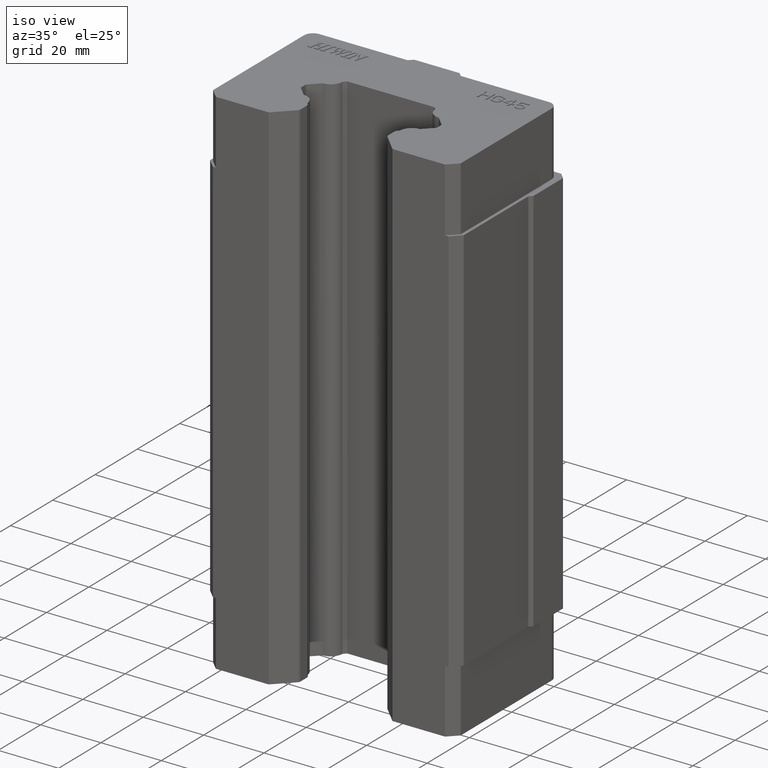
[diagram: clean part render]
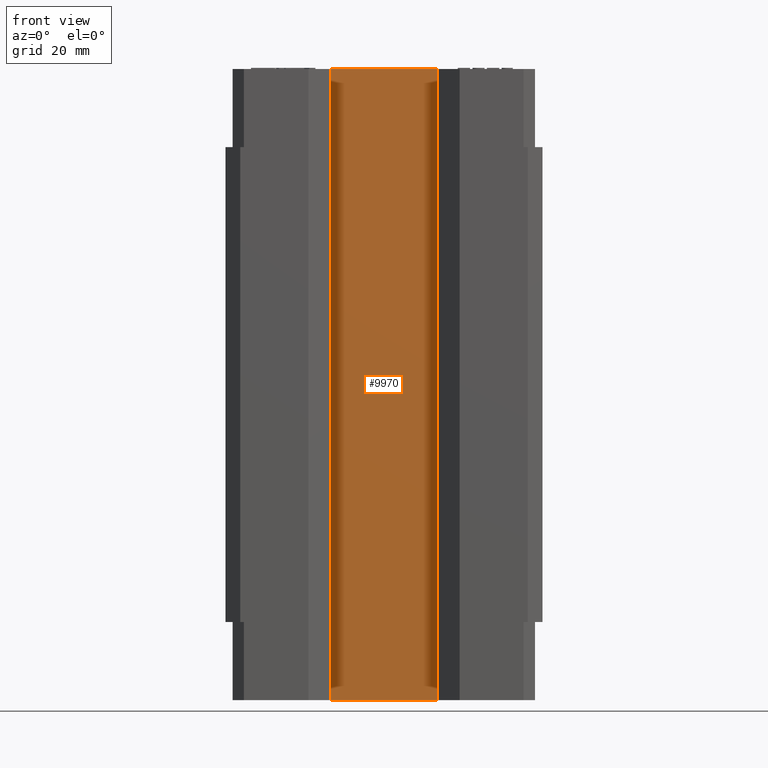
[diagram: tour spotlight — one face highlighted and labeled with its STEP entity id]
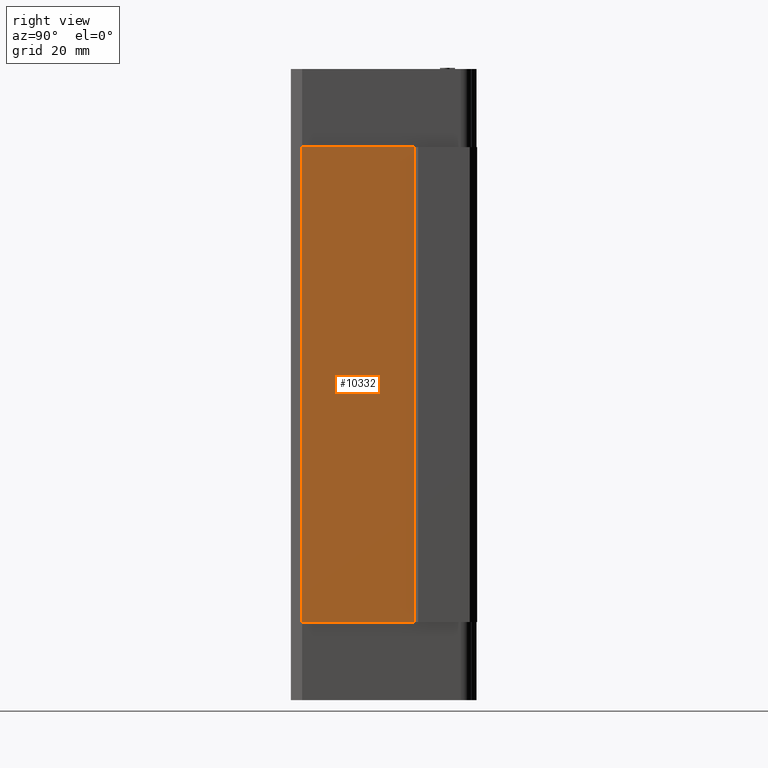
[diagram: tour spotlight — one face highlighted and labeled with its STEP entity id]
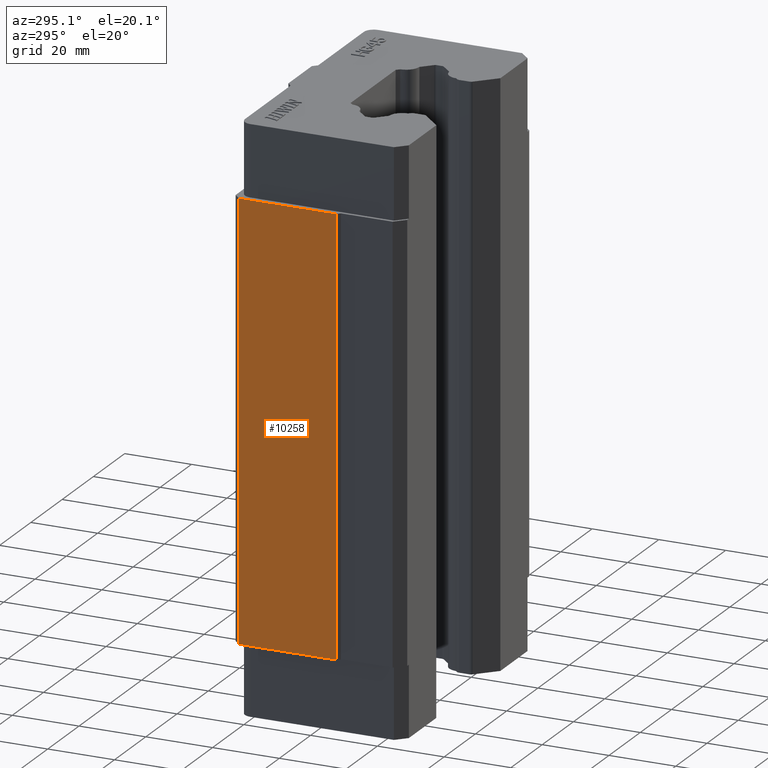
[diagram: tour spotlight — one face highlighted and labeled with its STEP entity id]
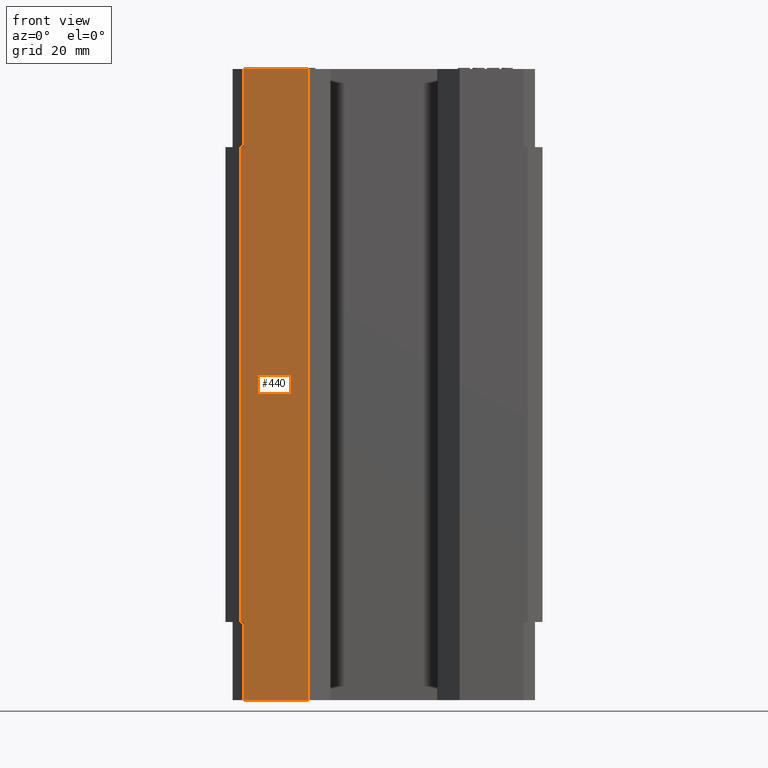
[diagram: tour spotlight — one face highlighted and labeled with its STEP entity id]
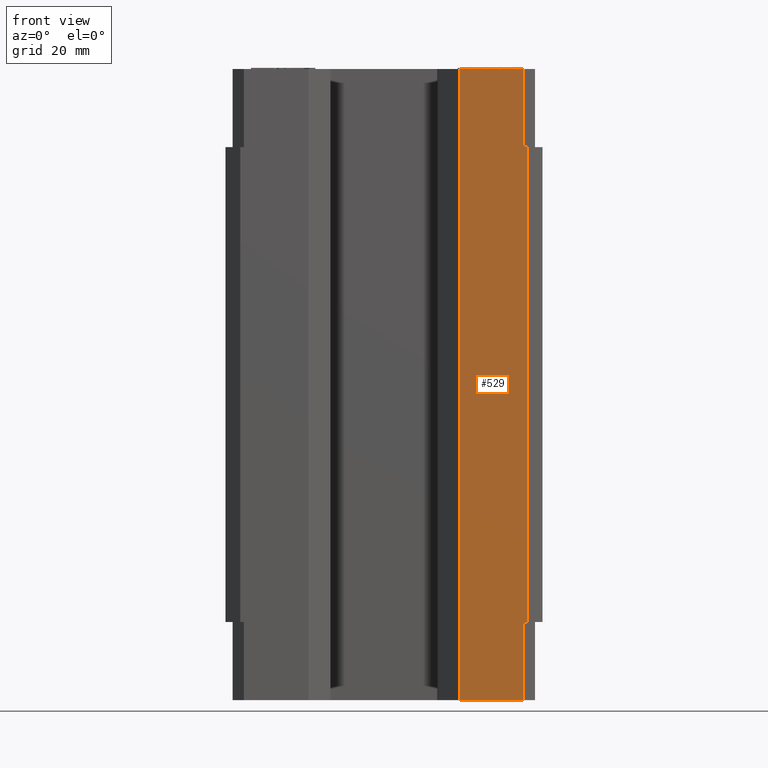
[diagram: tour spotlight — one face highlighted and labeled with its STEP entity id]
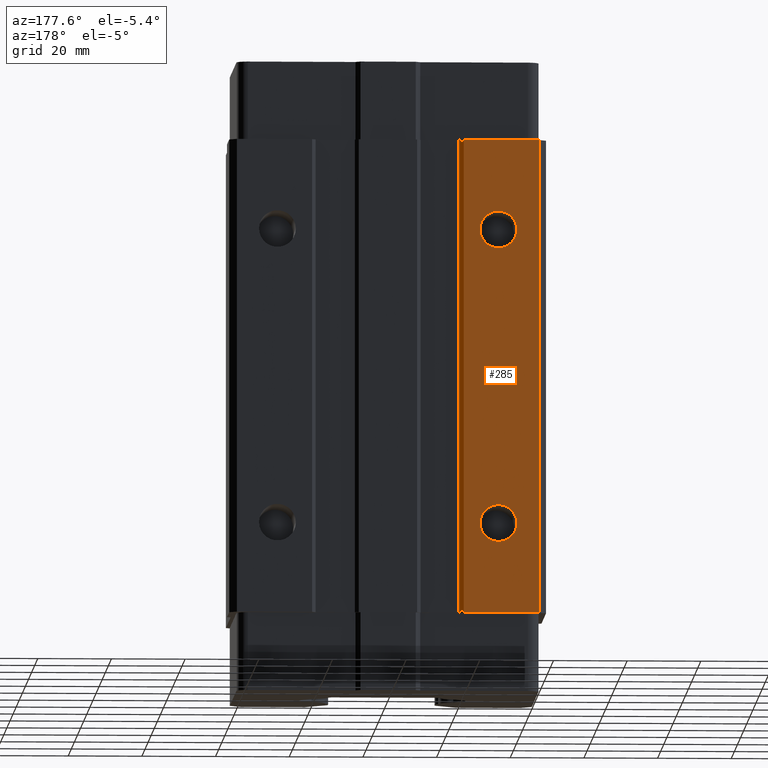
[diagram: tour spotlight — one face highlighted and labeled with its STEP entity id]
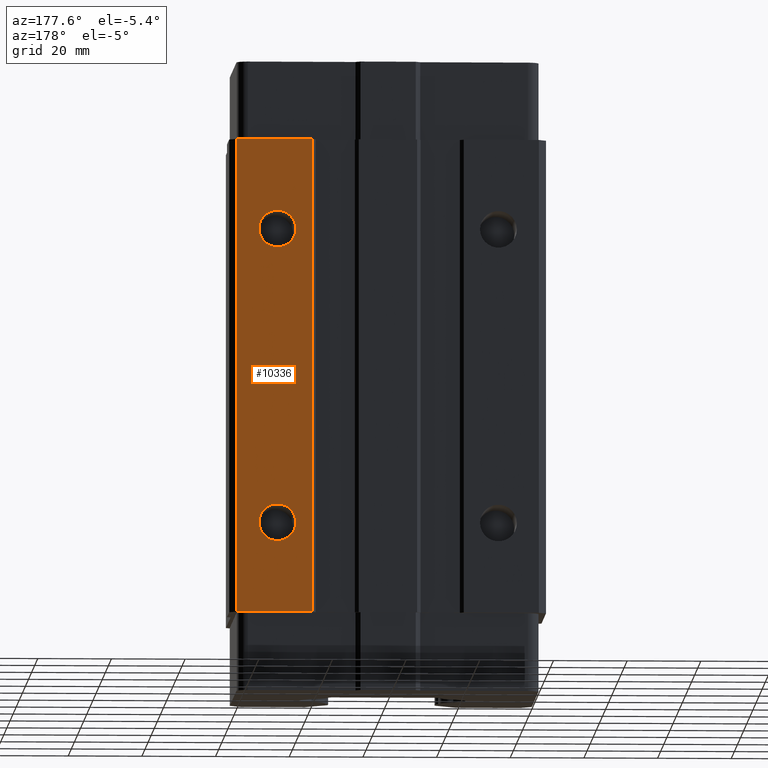
[diagram: tour spotlight — one face highlighted and labeled with its STEP entity id]
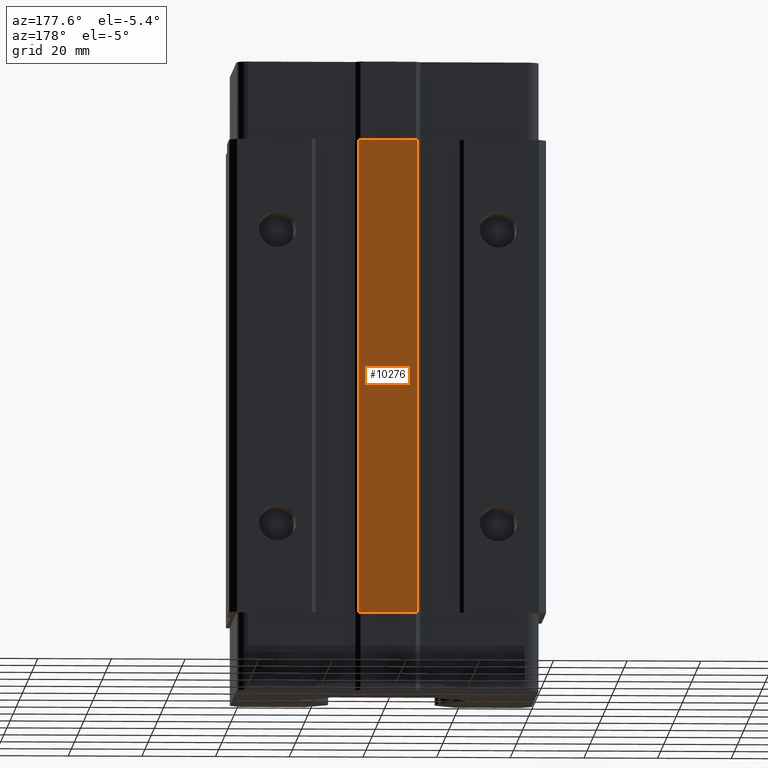
[diagram: tour spotlight — one face highlighted and labeled with its STEP entity id]
A machine part: a face-by-face anatomy tour. The part has 337 B-rep faces; the first image is the clean iso view, then the 8 largest visible faces are spotlighted one at a time (largest first), each with its STEP entity span.

Face 1 — front view, entity #9970. In plain terms, the highlighted planar face has unit normal (0, -1, 0).
Definition (entity closure, byte-faithful):
#6627 = CARTESIAN_POINT ( 'NONE',  ( -14.40034900003951700, -2.710505431213761100E-017, 85.60000000000000900 ) ) ;
#6652 = LINE ( 'NONE', #6711, #6710 ) ;
#6671 = CARTESIAN_POINT ( 'NONE',  ( 14.40034900003994300, 5.326495458048751500E-016, 85.60000000000000900 ) ) ;
#6672 = DIRECTION ( 'NONE',  ( -1.000000000000000000, 0.0000000000000000000, 0.0000000000000000000 ) ) ;
#6673 = VECTOR ( 'NONE', #6672, 1000.000000000000000 ) ;
#6674 = CARTESIAN_POINT ( 'NONE',  ( -14.40034900004000000, 0.0000000000000000000, 85.60000000000000900 ) ) ;
#6675 = LINE ( 'NONE', #6674, #6673 ) ;
#6707 = CARTESIAN_POINT ( 'NONE',  ( 14.40034900004000900, -6.630610629876739000E-014, -85.59999999999999400 ) ) ;
#6708 = CARTESIAN_POINT ( 'NONE',  ( -14.40034900003993300, -5.350836479148531500E-014, -85.59999999999998000 ) ) ;
#6709 = DIRECTION ( 'NONE',  ( 0.0000000000000000000, 0.0000000000000000000, -1.000000000000000000 ) ) ;
#6710 = VECTOR ( 'NONE', #6709, 1000.000000000000000 ) ;
#6711 = CARTESIAN_POINT ( 'NONE',  ( -14.40034900004000000, 0.0000000000000000000, -64.40000000000000600 ) ) ;
#6733 = DIRECTION ( 'NONE',  ( 1.000000000000000000, 0.0000000000000000000, 0.0000000000000000000 ) ) ;
#6734 = VECTOR ( 'NONE', #6733, 1000.000000000000000 ) ;
#6735 = CARTESIAN_POINT ( 'NONE',  ( -14.40034900004000000, 0.0000000000000000000, -85.59999999999999400 ) ) ;
#6736 = LINE ( 'NONE', #6735, #6734 ) ;
#7041 = DIRECTION ( 'NONE',  ( 0.0000000000000000000, 0.0000000000000000000, 1.000000000000000000 ) ) ;
#7042 = VECTOR ( 'NONE', #7041, 1000.000000000000000 ) ;
#7043 = CARTESIAN_POINT ( 'NONE',  ( 14.40034900004000000, 0.0000000000000000000, -64.40000000000000600 ) ) ;
#7044 = LINE ( 'NONE', #7043, #7042 ) ;
#7045 = DIRECTION ( 'NONE',  ( 0.0000000000000000000, 0.0000000000000000000, -1.000000000000000000 ) ) ;
#7046 = DIRECTION ( 'NONE',  ( 0.0000000000000000000, -1.000000000000000000, 0.0000000000000000000 ) ) ;
#7047 = CARTESIAN_POINT ( 'NONE',  ( -14.40034900004000000, 0.0000000000000000000, -64.40000000000000600 ) ) ;
#7048 = AXIS2_PLACEMENT_3D ( 'NONE', #7047, #7046, #7045 ) ;
#7049 = PLANE ( 'NONE',  #7048 ) ;
#7050 = FACE_OUTER_BOUND ( 'NONE', #9974, .T. ) ;
#8965 = VERTEX_POINT ( 'NONE', #6627 ) ;
#9191 = EDGE_CURVE ( 'NONE', #9192, #8965, #6675, .T. ) ;
#9192 = VERTEX_POINT ( 'NONE', #6671 ) ;
#9390 = EDGE_CURVE ( 'NONE', #8965, #9401, #6652, .T. ) ;
#9401 = VERTEX_POINT ( 'NONE', #6708 ) ;
#9418 = VERTEX_POINT ( 'NONE', #6707 ) ;
#9780 = EDGE_CURVE ( 'NONE', #9401, #9418, #6736, .T. ) ;
#9970 = ADVANCED_FACE ( 'NONE', ( #7050 ), #7049, .T. ) ;
#9972 = EDGE_CURVE ( 'NONE', #9418, #9192, #7044, .T. ) ;
#9973 = ORIENTED_EDGE ( 'NONE', *, *, #9191, .T. ) ;
#9974 = EDGE_LOOP ( 'NONE', ( #9986, #9988, #9973, #9980 ) ) ;
#9980 = ORIENTED_EDGE ( 'NONE', *, *, #9390, .T. ) ;
#9986 = ORIENTED_EDGE ( 'NONE', *, *, #9780, .T. ) ;
#9988 = ORIENTED_EDGE ( 'NONE', *, *, #9972, .T. ) ;

Face 2 — right view, entity #10332. In plain terms, the highlighted planar face has unit normal (1, 0, 0).
Definition (entity closure, byte-faithful):
#2115 = EDGE_CURVE ( 'NONE', #2131, #2156, #5201, .T. ) ;
#2131 = VERTEX_POINT ( 'NONE', #5236 ) ;
#2156 = VERTEX_POINT ( 'NONE', #5259 ) ;
#5198 = DIRECTION ( 'NONE',  ( 0.0000000000000000000, 0.0000000000000000000, 1.000000000000000000 ) ) ;
#5199 = VECTOR ( 'NONE', #5198, 1000.000000000000000 ) ;
#5200 = CARTESIAN_POINT ( 'NONE',  ( 42.00000000000000000, 5.000000000000000900, -64.40000000000000600 ) ) ;
#5201 = LINE ( 'NONE', #5200, #5199 ) ;
#5236 = CARTESIAN_POINT ( 'NONE',  ( 41.99999999999999300, 5.000000000000000900, -64.40000000000000600 ) ) ;
#5259 = CARTESIAN_POINT ( 'NONE',  ( 41.99999999999999300, 5.000000000000000900, 64.40000000000000600 ) ) ;
#7648 = CARTESIAN_POINT ( 'NONE',  ( 42.00000000000007100, -25.50000000000006800, -64.40000000000000600 ) ) ;
#7666 = LINE ( 'NONE', #7726, #7725 ) ;
#7720 = DIRECTION ( 'NONE',  ( 0.0000000000000000000, 0.0000000000000000000, 1.000000000000000000 ) ) ;
#7721 = VECTOR ( 'NONE', #7720, 1000.000000000000000 ) ;
#7722 = CARTESIAN_POINT ( 'NONE',  ( 42.00000000000021300, -25.50000000000021300, -64.40000000000000600 ) ) ;
#7723 = LINE ( 'NONE', #7722, #7721 ) ;
#7724 = DIRECTION ( 'NONE',  ( 0.0000000000000000000, 1.000000000000000000, 0.0000000000000000000 ) ) ;
#7725 = VECTOR ( 'NONE', #7724, 1000.000000000000000 ) ;
#7726 = CARTESIAN_POINT ( 'NONE',  ( 42.00000000000000000, 0.0000000000000000000, 64.40000000000000600 ) ) ;
#7729 = LINE ( 'NONE', #7790, #7789 ) ;
#7732 = CARTESIAN_POINT ( 'NONE',  ( 42.00000000000013500, -25.50000000000021000, 64.40000000000000600 ) ) ;
#7764 = DIRECTION ( 'NONE',  ( 0.0000000000000000000, 0.0000000000000000000, -1.000000000000000000 ) ) ;
#7765 = DIRECTION ( 'NONE',  ( 1.000000000000000000, 0.0000000000000000000, 0.0000000000000000000 ) ) ;
#7766 = CARTESIAN_POINT ( 'NONE',  ( 42.00000000000000000, -25.50000000000000400, -64.40000000000000600 ) ) ;
#7767 = AXIS2_PLACEMENT_3D ( 'NONE', #7766, #7765, #7764 ) ;
#7768 = PLANE ( 'NONE',  #7767 ) ;
#7769 = FACE_OUTER_BOUND ( 'NONE', #10278, .T. ) ;
#7788 = DIRECTION ( 'NONE',  ( 0.0000000000000000000, 1.000000000000000000, 0.0000000000000000000 ) ) ;
#7789 = VECTOR ( 'NONE', #7788, 1000.000000000000000 ) ;
#7790 = CARTESIAN_POINT ( 'NONE',  ( 42.00000000000000000, 0.0000000000000000000, -64.40000000000000600 ) ) ;
#10236 = ORIENTED_EDGE ( 'NONE', *, *, #10312, .T. ) ;
#10238 = VERTEX_POINT ( 'NONE', #7648 ) ;
#10277 = EDGE_CURVE ( 'NONE', #10306, #2156, #7666, .T. ) ;
#10278 = EDGE_LOOP ( 'NONE', ( #10236, #10313, #10302, #10349 ) ) ;
#10281 = EDGE_CURVE ( 'NONE', #10238, #10306, #7723, .T. ) ;
#10302 = ORIENTED_EDGE ( 'NONE', *, *, #10277, .F. ) ;
#10306 = VERTEX_POINT ( 'NONE', #7732 ) ;
#10312 = EDGE_CURVE ( 'NONE', #10238, #2131, #7729, .T. ) ;
#10313 = ORIENTED_EDGE ( 'NONE', *, *, #2115, .T. ) ;
#10332 = ADVANCED_FACE ( 'NONE', ( #7769 ), #7768, .T. ) ;
#10349 = ORIENTED_EDGE ( 'NONE', *, *, #10281, .F. ) ;

Face 3 — auxiliary view, entity #10258. In plain terms, the highlighted planar face has unit normal (-1, 0, 0).
Definition (entity closure, byte-faithful):
#2085 = EDGE_CURVE ( 'NONE', #10159, #2116, #5116, .T. ) ;
#2116 = VERTEX_POINT ( 'NONE', #5197 ) ;
#2145 = EDGE_CURVE ( 'NONE', #2157, #2116, #5222, .T. ) ;
#2157 = VERTEX_POINT ( 'NONE', #5258 ) ;
#5113 = DIRECTION ( 'NONE',  ( 0.0000000000000000000, -1.000000000000000000, 0.0000000000000000000 ) ) ;
#5114 = VECTOR ( 'NONE', #5113, 1000.000000000000000 ) ;
#5115 = CARTESIAN_POINT ( 'NONE',  ( -43.00000000000000000, 0.0000000000000000000, 64.40000000000000600 ) ) ;
#5116 = LINE ( 'NONE', #5115, #5114 ) ;
#5197 = CARTESIAN_POINT ( 'NONE',  ( -43.00000000000000000, -9.000000000000001800, 64.40000000000000600 ) ) ;
#5219 = DIRECTION ( 'NONE',  ( 0.0000000000000000000, 0.0000000000000000000, 1.000000000000000000 ) ) ;
#5220 = VECTOR ( 'NONE', #5219, 1000.000000000000000 ) ;
#5221 = CARTESIAN_POINT ( 'NONE',  ( -43.00000000000000000, -9.000000000000001800, -64.40000000000000600 ) ) ;
#5222 = LINE ( 'NONE', #5221, #5220 ) ;
#5258 = CARTESIAN_POINT ( 'NONE',  ( -43.00000000000000000, -9.000000000000001800, -64.40000000000006300 ) ) ;
#7511 = CARTESIAN_POINT ( 'NONE',  ( -43.00000000000000000, 20.00000000000000000, 64.40000000000000600 ) ) ;
#7643 = CARTESIAN_POINT ( 'NONE',  ( -43.00000000000000000, 20.00000000000000400, -64.40000000000003400 ) ) ;
#7644 = DIRECTION ( 'NONE',  ( 0.0000000000000000000, 0.0000000000000000000, -1.000000000000000000 ) ) ;
#7645 = VECTOR ( 'NONE', #7644, 1000.000000000000000 ) ;
#7646 = CARTESIAN_POINT ( 'NONE',  ( -43.00000000000000000, 20.00000000000000000, 64.40000000000000600 ) ) ;
#7647 = LINE ( 'NONE', #7646, #7645 ) ;
#7679 = DIRECTION ( 'NONE',  ( 0.0000000000000000000, -1.000000000000000000, 0.0000000000000000000 ) ) ;
#7680 = VECTOR ( 'NONE', #7679, 1000.000000000000000 ) ;
#7681 = CARTESIAN_POINT ( 'NONE',  ( -43.00000000000000000, 0.0000000000000000000, -64.40000000000000600 ) ) ;
#7682 = LINE ( 'NONE', #7681, #7680 ) ;
#7683 = DIRECTION ( 'NONE',  ( 0.0000000000000000000, 0.0000000000000000000, 1.000000000000000000 ) ) ;
#7684 = DIRECTION ( 'NONE',  ( -1.000000000000000000, 0.0000000000000000000, 0.0000000000000000000 ) ) ;
#7685 = CARTESIAN_POINT ( 'NONE',  ( -43.00000000000000000, 30.00000000000000000, -64.40000000000000600 ) ) ;
#7686 = AXIS2_PLACEMENT_3D ( 'NONE', #7685, #7684, #7683 ) ;
#7687 = PLANE ( 'NONE',  #7686 ) ;
#7688 = FACE_OUTER_BOUND ( 'NONE', #10184, .T. ) ;
#10159 = VERTEX_POINT ( 'NONE', #7511 ) ;
#10184 = EDGE_LOOP ( 'NONE', ( #10235, #10240, #10307, #10239 ) ) ;
#10235 = ORIENTED_EDGE ( 'NONE', *, *, #2145, .T. ) ;
#10239 = ORIENTED_EDGE ( 'NONE', *, *, #10260, .T. ) ;
#10240 = ORIENTED_EDGE ( 'NONE', *, *, #2085, .F. ) ;
#10246 = EDGE_CURVE ( 'NONE', #10159, #10247, #7647, .T. ) ;
#10247 = VERTEX_POINT ( 'NONE', #7643 ) ;
#10258 = ADVANCED_FACE ( 'NONE', ( #7688 ), #7687, .T. ) ;
#10260 = EDGE_CURVE ( 'NONE', #10247, #2157, #7682, .T. ) ;
#10307 = ORIENTED_EDGE ( 'NONE', *, *, #10246, .T. ) ;

Face 4 — front view, entity #440. In plain terms, the highlighted planar face has unit normal (0, -1, 0).
Definition (entity closure, byte-faithful):
#316 = EDGE_CURVE ( 'NONE', #7115, #377, #1400, .T. ) ;
#317 = EDGE_CURVE ( 'NONE', #10056, #447, #1396, .T. ) ;
#318 = ORIENTED_EDGE ( 'NONE', *, *, #10073, .T. ) ;
#319 = ORIENTED_EDGE ( 'NONE', *, *, #12356, .F. ) ;
#320 = ORIENTED_EDGE ( 'NONE', *, *, #11398, .T. ) ;
#321 = ORIENTED_EDGE ( 'NONE', *, *, #9883, .T. ) ;
#377 = VERTEX_POINT ( 'NONE', #1493 ) ;
#440 = ADVANCED_FACE ( 'NONE', ( #1548 ), #1553, .T. ) ;
#441 = EDGE_LOOP ( 'NONE', ( #442, #445, #448, #318, #319, #320, #321, #452 ) ) ;
#442 = ORIENTED_EDGE ( 'NONE', *, *, #443, .T. ) ;
#443 = EDGE_CURVE ( 'NONE', #377, #444, #1608, .T. ) ;
#444 = VERTEX_POINT ( 'NONE', #1604 ) ;
#445 = ORIENTED_EDGE ( 'NONE', *, *, #446, .F. ) ;
#446 = EDGE_CURVE ( 'NONE', #447, #444, #1603, .T. ) ;
#447 = VERTEX_POINT ( 'NONE', #1599 ) ;
#448 = ORIENTED_EDGE ( 'NONE', *, *, #317, .F. ) ;
#452 = ORIENTED_EDGE ( 'NONE', *, *, #316, .T. ) ;
#1393 = DIRECTION ( 'NONE',  ( 1.000000000000000000, 0.0000000000000000000, 0.0000000000000000000 ) ) ;
#1394 = VECTOR ( 'NONE', #1393, 1000.000000000000000 ) ;
#1395 = CARTESIAN_POINT ( 'NONE',  ( 0.0000000000000000000, -28.50000000000000000, 85.59999999999999400 ) ) ;
#1396 = LINE ( 'NONE', #1395, #1394 ) ;
#1397 = DIRECTION ( 'NONE',  ( 0.0000000000000000000, 0.0000000000000000000, -1.000000000000000000 ) ) ;
#1398 = VECTOR ( 'NONE', #1397, 1000.000000000000000 ) ;
#1399 = CARTESIAN_POINT ( 'NONE',  ( -38.00187600000000300, -28.50000000000000000, -64.40000000000000600 ) ) ;
#1400 = LINE ( 'NONE', #1399, #1398 ) ;
#1493 = CARTESIAN_POINT ( 'NONE',  ( -38.00187600000000300, -28.50000000000000000, -85.59999999999998000 ) ) ;
#1548 = FACE_OUTER_BOUND ( 'NONE', #441, .T. ) ;
#1553 = PLANE ( 'NONE',  #1612 ) ;
#1599 = CARTESIAN_POINT ( 'NONE',  ( -20.50032659997999900, -28.50000000000000000, 85.60000000000000900 ) ) ;
#1600 = DIRECTION ( 'NONE',  ( 0.0000000000000000000, 0.0000000000000000000, -1.000000000000000000 ) ) ;
#1601 = VECTOR ( 'NONE', #1600, 1000.000000000000000 ) ;
#1602 = CARTESIAN_POINT ( 'NONE',  ( -20.50032659997999900, -28.50000000000000000, -64.40000000000000600 ) ) ;
#1603 = LINE ( 'NONE', #1602, #1601 ) ;
#1604 = CARTESIAN_POINT ( 'NONE',  ( -20.50032659997999900, -28.50000000000000000, -85.59999999999998000 ) ) ;
#1605 = DIRECTION ( 'NONE',  ( 1.000000000000000000, 0.0000000000000000000, 0.0000000000000000000 ) ) ;
#1606 = VECTOR ( 'NONE', #1605, 1000.000000000000000 ) ;
#1607 = CARTESIAN_POINT ( 'NONE',  ( 0.0000000000000000000, -28.50000000000000000, -85.59999999999999400 ) ) ;
#1608 = LINE ( 'NONE', #1607, #1606 ) ;
#1609 = DIRECTION ( 'NONE',  ( 0.0000000000000000000, 0.0000000000000000000, -1.000000000000000000 ) ) ;
#1610 = DIRECTION ( 'NONE',  ( 0.0000000000000000000, -1.000000000000000000, 0.0000000000000000000 ) ) ;
#1611 = CARTESIAN_POINT ( 'NONE',  ( -39.00000000000000000, -28.50000000000000000, -64.40000000000000600 ) ) ;
#1612 = AXIS2_PLACEMENT_3D ( 'NONE', #1611, #1610, #1609 ) ;
#2613 = DIRECTION ( 'NONE',  ( 0.0000000000000000000, 0.0000000000000000000, -1.000000000000000000 ) ) ;
#2614 = VECTOR ( 'NONE', #2613, 1000.000000000000000 ) ;
#2615 = CARTESIAN_POINT ( 'NONE',  ( -39.00000000000000000, -28.50000000000000000, -64.40000000000000600 ) ) ;
#2616 = LINE ( 'NONE', #2615, #2614 ) ;
#2626 = CARTESIAN_POINT ( 'NONE',  ( -38.99999999999999300, -28.50000000000000000, -64.40000000000000600 ) ) ;
#4260 = CARTESIAN_POINT ( 'NONE',  ( -38.00187600000000300, -28.50000000000000000, 64.40000000000000600 ) ) ;
#4332 = DIRECTION ( 'NONE',  ( 1.000000000000000000, 0.0000000000000000000, 0.0000000000000000000 ) ) ;
#4333 = VECTOR ( 'NONE', #4332, 1000.000000000000000 ) ;
#4334 = CARTESIAN_POINT ( 'NONE',  ( 0.0000000000000000000, -28.50000000000000000, 64.40000000000000600 ) ) ;
#4335 = LINE ( 'NONE', #4334, #4333 ) ;
#4336 = CARTESIAN_POINT ( 'NONE',  ( -38.99999999999992900, -28.49999999999993200, 64.40000000000000600 ) ) ;
#6522 = CARTESIAN_POINT ( 'NONE',  ( -38.00187600000000300, -28.50000000000000000, -64.40000000000000600 ) ) ;
#6920 = DIRECTION ( 'NONE',  ( 1.000000000000000000, 0.0000000000000000000, 0.0000000000000000000 ) ) ;
#6921 = VECTOR ( 'NONE', #6920, 1000.000000000000000 ) ;
#6922 = CARTESIAN_POINT ( 'NONE',  ( -39.00000000000000000, -28.50000000000000000, -64.40000000000000600 ) ) ;
#6923 = LINE ( 'NONE', #6922, #6921 ) ;
#7115 = VERTEX_POINT ( 'NONE', #6522 ) ;
#7284 = CARTESIAN_POINT ( 'NONE',  ( -38.00187600000000300, -28.50000000000000400, 85.60000000000000900 ) ) ;
#7292 = DIRECTION ( 'NONE',  ( 0.0000000000000000000, 0.0000000000000000000, -1.000000000000000000 ) ) ;
#7293 = VECTOR ( 'NONE', #7292, 1000.000000000000000 ) ;
#7294 = CARTESIAN_POINT ( 'NONE',  ( -38.00187600000000300, -28.50000000000000000, -64.40000000000000600 ) ) ;
#7295 = LINE ( 'NONE', #7294, #7293 ) ;
#9883 = EDGE_CURVE ( 'NONE', #11422, #7115, #6923, .T. ) ;
#10056 = VERTEX_POINT ( 'NONE', #7284 ) ;
#10073 = EDGE_CURVE ( 'NONE', #10056, #12319, #7295, .T. ) ;
#11398 = EDGE_CURVE ( 'NONE', #12355, #11422, #2616, .T. ) ;
#11422 = VERTEX_POINT ( 'NONE', #2626 ) ;
#12319 = VERTEX_POINT ( 'NONE', #4260 ) ;
#12355 = VERTEX_POINT ( 'NONE', #4336 ) ;
#12356 = EDGE_CURVE ( 'NONE', #12355, #12319, #4335, .T. ) ;

Face 5 — front view, entity #529. In plain terms, the highlighted planar face has unit normal (0, -1, 0).
Definition (entity closure, byte-faithful):
#97 = VERTEX_POINT ( 'NONE', #996 ) ;
#115 = EDGE_CURVE ( 'NONE', #97, #2181, #1027, .T. ) ;
#404 = ORIENTED_EDGE ( 'NONE', *, *, #5888, .T. ) ;
#405 = ORIENTED_EDGE ( 'NONE', *, *, #115, .T. ) ;
#406 = ORIENTED_EDGE ( 'NONE', *, *, #2108, .F. ) ;
#407 = ORIENTED_EDGE ( 'NONE', *, *, #9931, .T. ) ;
#408 = ORIENTED_EDGE ( 'NONE', *, *, #409, .F. ) ;
#409 = EDGE_CURVE ( 'NONE', #525, #9926, #1524, .T. ) ;
#410 = ORIENTED_EDGE ( 'NONE', *, *, #524, .T. ) ;
#411 = ORIENTED_EDGE ( 'NONE', *, *, #412, .T. ) ;
#412 = EDGE_CURVE ( 'NONE', #522, #533, #1519, .T. ) ;
#522 = VERTEX_POINT ( 'NONE', #1769 ) ;
#524 = EDGE_CURVE ( 'NONE', #525, #522, #1768, .T. ) ;
#525 = VERTEX_POINT ( 'NONE', #1764 ) ;
#529 = ADVANCED_FACE ( 'NONE', ( #1759 ), #1758, .T. ) ;
#530 = EDGE_LOOP ( 'NONE', ( #531, #404, #405, #406, #407, #408, #410, #411 ) ) ;
#531 = ORIENTED_EDGE ( 'NONE', *, *, #532, .T. ) ;
#532 = EDGE_CURVE ( 'NONE', #533, #5854, #1753, .T. ) ;
#533 = VERTEX_POINT ( 'NONE', #1749 ) ;
#996 = CARTESIAN_POINT ( 'NONE',  ( 38.99999999999999300, -28.50000000000000000, -64.40000000000000600 ) ) ;
#1024 = DIRECTION ( 'NONE',  ( 0.0000000000000000000, 0.0000000000000000000, 1.000000000000000000 ) ) ;
#1025 = VECTOR ( 'NONE', #1024, 1000.000000000000000 ) ;
#1026 = CARTESIAN_POINT ( 'NONE',  ( 39.00000000000000000, -28.50000000000000000, -64.40000000000000600 ) ) ;
#1027 = LINE ( 'NONE', #1026, #1025 ) ;
#1063 = DIRECTION ( 'NONE',  ( 1.000000000000000000, 0.0000000000000000000, 0.0000000000000000000 ) ) ;
#1064 = VECTOR ( 'NONE', #1063, 1000.000000000000000 ) ;
#1518 = CARTESIAN_POINT ( 'NONE',  ( 0.0000000000000000000, -28.50000000000000000, -85.59999999999999400 ) ) ;
#1519 = LINE ( 'NONE', #1518, #1064 ) ;
#1521 = DIRECTION ( 'NONE',  ( 1.000000000000000000, 0.0000000000000000000, 0.0000000000000000000 ) ) ;
#1522 = VECTOR ( 'NONE', #1521, 1000.000000000000000 ) ;
#1523 = CARTESIAN_POINT ( 'NONE',  ( 0.0000000000000000000, -28.50000000000000000, 85.59999999999999400 ) ) ;
#1524 = LINE ( 'NONE', #1523, #1522 ) ;
#1749 = CARTESIAN_POINT ( 'NONE',  ( 37.88728995361999800, -28.50000000000000000, -85.60000000000000900 ) ) ;
#1750 = DIRECTION ( 'NONE',  ( 0.0000000000000000000, 0.0000000000000000000, 1.000000000000000000 ) ) ;
#1751 = VECTOR ( 'NONE', #1750, 1000.000000000000000 ) ;
#1752 = CARTESIAN_POINT ( 'NONE',  ( 37.88728995361999800, -28.50000000000000000, -64.40000000000000600 ) ) ;
#1753 = LINE ( 'NONE', #1752, #1751 ) ;
#1754 = DIRECTION ( 'NONE',  ( 0.0000000000000000000, 0.0000000000000000000, -1.000000000000000000 ) ) ;
#1755 = DIRECTION ( 'NONE',  ( 0.0000000000000000000, -1.000000000000000000, 0.0000000000000000000 ) ) ;
#1756 = CARTESIAN_POINT ( 'NONE',  ( 20.50032659997999900, -28.50000000000000000, -64.40000000000000600 ) ) ;
#1757 = AXIS2_PLACEMENT_3D ( 'NONE', #1756, #1755, #1754 ) ;
#1758 = PLANE ( 'NONE',  #1757 ) ;
#1759 = FACE_OUTER_BOUND ( 'NONE', #530, .T. ) ;
#1764 = CARTESIAN_POINT ( 'NONE',  ( 20.50032659999000000, -28.50000000000000000, 85.60000000000000900 ) ) ;
#1765 = DIRECTION ( 'NONE',  ( 0.0000000000000000000, 0.0000000000000000000, -1.000000000000000000 ) ) ;
#1766 = VECTOR ( 'NONE', #1765, 1000.000000000000000 ) ;
#1767 = CARTESIAN_POINT ( 'NONE',  ( 20.50032659999000000, -28.50000000000000000, -64.40000000000000600 ) ) ;
#1768 = LINE ( 'NONE', #1767, #1766 ) ;
#1769 = CARTESIAN_POINT ( 'NONE',  ( 20.50032659999000000, -28.50000000000000000, -85.59999999999998000 ) ) ;
#2108 = EDGE_CURVE ( 'NONE', #2183, #2181, #5146, .T. ) ;
#2181 = VERTEX_POINT ( 'NONE', #5294 ) ;
#2183 = VERTEX_POINT ( 'NONE', #5293 ) ;
#5145 = CARTESIAN_POINT ( 'NONE',  ( 0.0000000000000000000, -28.50000000000000000, 64.40000000000000600 ) ) ;
#5146 = LINE ( 'NONE', #5145, #5213 ) ;
#5211 = DIRECTION ( 'NONE',  ( 1.000000000000000000, 0.0000000000000000000, 0.0000000000000000000 ) ) ;
#5213 = VECTOR ( 'NONE', #5211, 1000.000000000000000 ) ;
#5293 = CARTESIAN_POINT ( 'NONE',  ( 37.88728995361999100, -28.50000000000000000, 64.40000000000000600 ) ) ;
#5294 = CARTESIAN_POINT ( 'NONE',  ( 38.99999999999999300, -28.50000000000000000, 64.40000000000000600 ) ) ;
#5854 = VERTEX_POINT ( 'NONE', #6478 ) ;
#5888 = EDGE_CURVE ( 'NONE', #5854, #97, #6472, .T. ) ;
#6461 = DIRECTION ( 'NONE',  ( 1.000000000000000000, 0.0000000000000000000, 0.0000000000000000000 ) ) ;
#6462 = VECTOR ( 'NONE', #6461, 1000.000000000000000 ) ;
#6471 = CARTESIAN_POINT ( 'NONE',  ( 20.50032659997999900, -28.50000000000000000, -64.40000000000000600 ) ) ;
#6472 = LINE ( 'NONE', #6471, #6462 ) ;
#6478 = CARTESIAN_POINT ( 'NONE',  ( 37.88728995361999100, -28.50000000000000000, -64.40000000000000600 ) ) ;
#6986 = DIRECTION ( 'NONE',  ( 0.0000000000000000000, 0.0000000000000000000, 1.000000000000000000 ) ) ;
#6987 = VECTOR ( 'NONE', #6986, 1000.000000000000000 ) ;
#6988 = CARTESIAN_POINT ( 'NONE',  ( 37.88728995361999800, -28.50000000000000000, -64.40000000000000600 ) ) ;
#6989 = LINE ( 'NONE', #6988, #6987 ) ;
#6990 = CARTESIAN_POINT ( 'NONE',  ( 37.88728995361999800, -28.50000000000000000, 85.60000000000000900 ) ) ;
#9926 = VERTEX_POINT ( 'NONE', #6990 ) ;
#9931 = EDGE_CURVE ( 'NONE', #2183, #9926, #6989, .T. ) ;

Face 6 — auxiliary view, entity #285. In plain terms, the highlighted planar face has unit normal (-0, -1, 0).
Definition (entity closure, byte-faithful):
#264 = ORIENTED_EDGE ( 'NONE', *, *, #10154, .F. ) ;
#278 = ORIENTED_EDGE ( 'NONE', *, *, #279, .T. ) ;
#279 = EDGE_CURVE ( 'NONE', #10123, #12288, #1335, .T. ) ;
#283 = EDGE_LOOP ( 'NONE', ( #12291, #12275 ) ) ;
#285 = ADVANCED_FACE ( 'NONE', ( #1325, #1324, #1323 ), #1322, .F. ) ;
#1322 = PLANE ( 'NONE',  #1386 ) ;
#1323 = FACE_OUTER_BOUND ( 'NONE', #12273, .T. ) ;
#1324 = FACE_BOUND ( 'NONE', #283, .T. ) ;
#1325 = FACE_BOUND ( 'NONE', #12277, .T. ) ;
#1332 = DIRECTION ( 'NONE',  ( -1.000000000000000000, 0.0000000000000000000, 0.0000000000000000000 ) ) ;
#1333 = VECTOR ( 'NONE', #1332, 1000.000000000000000 ) ;
#1334 = CARTESIAN_POINT ( 'NONE',  ( 0.0000000000000000000, 22.00000000000000000, -64.40000000000000600 ) ) ;
#1335 = LINE ( 'NONE', #1334, #1333 ) ;
#1383 = DIRECTION ( 'NONE',  ( 1.000000000000000000, -1.130647294537000100E-014, 0.0000000000000000000 ) ) ;
#1384 = DIRECTION ( 'NONE',  ( -1.130647294537000100E-014, -1.000000000000000000, 0.0000000000000000000 ) ) ;
#1385 = CARTESIAN_POINT ( 'NONE',  ( -41.00000000000000000, 22.00000000000000000, 64.40000000000000600 ) ) ;
#1386 = AXIS2_PLACEMENT_3D ( 'NONE', #1385, #1384, #1383 ) ;
#3848 = CARTESIAN_POINT ( 'NONE',  ( -25.00000000000011400, 21.99999999999988600, -40.00000000000000000 ) ) ;
#3878 = CARTESIAN_POINT ( 'NONE',  ( -25.00000000000011400, 21.99999999999988600, 40.00000000000000000 ) ) ;
#3893 = CARTESIAN_POINT ( 'NONE',  ( -35.00000000000011400, 22.00000000000000000, 40.00000000000000000 ) ) ;
#4169 = DIRECTION ( 'NONE',  ( -1.000000000000000000, 1.110223024625156400E-014, 0.0000000000000000000 ) ) ;
#4170 = DIRECTION ( 'NONE',  ( 1.130647294537000100E-014, 1.000000000000000000, 0.0000000000000000000 ) ) ;
#4171 = CARTESIAN_POINT ( 'NONE',  ( -30.00000000000011400, 21.99999999999994300, 40.00000000000000000 ) ) ;
#4172 = AXIS2_PLACEMENT_3D ( 'NONE', #4171, #4170, #4169 ) ;
#4173 = CIRCLE ( 'NONE', #4172, 5.000000000000000900 ) ;
#4188 = DIRECTION ( 'NONE',  ( 0.0000000000000000000, 0.0000000000000000000, 1.000000000000000000 ) ) ;
#4189 = VECTOR ( 'NONE', #4188, 1000.000000000000000 ) ;
#4190 = CARTESIAN_POINT ( 'NONE',  ( -41.00000000000000000, 22.00000000000000400, 64.40000000000000600 ) ) ;
#4191 = LINE ( 'NONE', #4190, #4189 ) ;
#4192 = CARTESIAN_POINT ( 'NONE',  ( -41.00000000000000700, 22.00000000000000000, -64.40000000000003400 ) ) ;
#4202 = CARTESIAN_POINT ( 'NONE',  ( -41.00000000000000700, 22.00000000000000000, 64.40000000000000600 ) ) ;
#4268 = DIRECTION ( 'NONE',  ( -1.000000000000000000, 0.0000000000000000000, 0.0000000000000000000 ) ) ;
#4269 = VECTOR ( 'NONE', #4268, 1000.000000000000000 ) ;
#4270 = CARTESIAN_POINT ( 'NONE',  ( 0.0000000000000000000, 22.00000000000000000, 64.40000000000000600 ) ) ;
#4271 = LINE ( 'NONE', #4270, #4269 ) ;
#7219 = DIRECTION ( 'NONE',  ( -1.000000000000000000, 1.110223024625156400E-014, 0.0000000000000000000 ) ) ;
#7246 = DIRECTION ( 'NONE',  ( 0.0000000000000000000, 0.0000000000000000000, 1.000000000000000000 ) ) ;
#7247 = VECTOR ( 'NONE', #7246, 1000.000000000000000 ) ;
#7248 = CARTESIAN_POINT ( 'NONE',  ( -20.57573593129000100, 21.99999999999976600, 64.40000000000000600 ) ) ;
#7249 = AXIS2_PLACEMENT_3D ( 'NONE', #7252, #7251, #7219 ) ;
#7250 = CIRCLE ( 'NONE', #7249, 5.000000000000000900 ) ;
#7251 = DIRECTION ( 'NONE',  ( 1.130647294537000100E-014, 1.000000000000000000, 0.0000000000000000000 ) ) ;
#7252 = CARTESIAN_POINT ( 'NONE',  ( -30.00000000000011400, 21.99999999999994300, 40.00000000000000000 ) ) ;
#7261 = LINE ( 'NONE', #7248, #7247 ) ;
#7391 = CARTESIAN_POINT ( 'NONE',  ( -20.57573593129000100, 21.99999999999994000, 64.40000000000000600 ) ) ;
#7426 = CARTESIAN_POINT ( 'NONE',  ( -20.57573593129000100, 21.99999999999994000, -64.40000000000000600 ) ) ;
#7689 = DIRECTION ( 'NONE',  ( -1.000000000000000000, 1.110223024625156400E-014, 0.0000000000000000000 ) ) ;
#7690 = DIRECTION ( 'NONE',  ( 1.130647294537000100E-014, 1.000000000000000000, 0.0000000000000000000 ) ) ;
#7691 = CARTESIAN_POINT ( 'NONE',  ( -30.00000000000011400, 21.99999999999994300, -40.00000000000000000 ) ) ;
#7692 = AXIS2_PLACEMENT_3D ( 'NONE', #7691, #7690, #7689 ) ;
#7693 = CIRCLE ( 'NONE', #7692, 5.000000000000000900 ) ;
#7828 = CARTESIAN_POINT ( 'NONE',  ( -35.00000000000011400, 22.00000000000000000, -40.00000000000000000 ) ) ;
#7949 = DIRECTION ( 'NONE',  ( -1.000000000000000000, 1.110223024625156400E-014, 0.0000000000000000000 ) ) ;
#7950 = DIRECTION ( 'NONE',  ( 1.130647294537000100E-014, 1.000000000000000000, 0.0000000000000000000 ) ) ;
#7951 = CARTESIAN_POINT ( 'NONE',  ( -30.00000000000011400, 21.99999999999994300, -40.00000000000000000 ) ) ;
#7952 = AXIS2_PLACEMENT_3D ( 'NONE', #7951, #7950, #7949 ) ;
#7953 = CIRCLE ( 'NONE', #7952, 5.000000000000000900 ) ;
#10106 = VERTEX_POINT ( 'NONE', #7391 ) ;
#10123 = VERTEX_POINT ( 'NONE', #7426 ) ;
#10147 = EDGE_CURVE ( 'NONE', #12240, #12238, #7250, .T. ) ;
#10154 = EDGE_CURVE ( 'NONE', #10123, #10106, #7261, .T. ) ;
#10255 = EDGE_CURVE ( 'NONE', #10378, #12233, #7693, .T. ) ;
#10378 = VERTEX_POINT ( 'NONE', #7828 ) ;
#10446 = EDGE_CURVE ( 'NONE', #12233, #10378, #7953, .T. ) ;
#12142 = ORIENTED_EDGE ( 'NONE', *, *, #10446, .F. ) ;
#12233 = VERTEX_POINT ( 'NONE', #3848 ) ;
#12238 = VERTEX_POINT ( 'NONE', #3878 ) ;
#12240 = VERTEX_POINT ( 'NONE', #3893 ) ;
#12259 = EDGE_CURVE ( 'NONE', #12238, #12240, #4173, .T. ) ;
#12273 = EDGE_LOOP ( 'NONE', ( #12283, #264, #278, #12281 ) ) ;
#12275 = ORIENTED_EDGE ( 'NONE', *, *, #12259, .F. ) ;
#12276 = VERTEX_POINT ( 'NONE', #4202 ) ;
#12277 = EDGE_LOOP ( 'NONE', ( #12279, #12142 ) ) ;
#12279 = ORIENTED_EDGE ( 'NONE', *, *, #10255, .F. ) ;
#12281 = ORIENTED_EDGE ( 'NONE', *, *, #12290, .T. ) ;
#12283 = ORIENTED_EDGE ( 'NONE', *, *, #12312, .F. ) ;
#12288 = VERTEX_POINT ( 'NONE', #4192 ) ;
#12290 = EDGE_CURVE ( 'NONE', #12288, #12276, #4191, .T. ) ;
#12291 = ORIENTED_EDGE ( 'NONE', *, *, #10147, .F. ) ;
#12312 = EDGE_CURVE ( 'NONE', #10106, #12276, #4271, .T. ) ;

Face 7 — auxiliary view, entity #10336. In plain terms, the highlighted planar face has unit normal (-0, -1, 0).
Definition (entity closure, byte-faithful):
#2161 = EDGE_CURVE ( 'NONE', #10373, #10409, #5257, .T. ) ;
#4092 = CARTESIAN_POINT ( 'NONE',  ( 24.99999999999988300, 22.00000000000000000, -40.00000000000000000 ) ) ;
#4150 = DIRECTION ( 'NONE',  ( -1.000000000000000000, 1.110223024625156400E-014, 0.0000000000000000000 ) ) ;
#4151 = DIRECTION ( 'NONE',  ( 1.130647294537000100E-014, 1.000000000000000000, 0.0000000000000000000 ) ) ;
#4152 = CARTESIAN_POINT ( 'NONE',  ( 29.99999999999988300, 21.99999999999994300, -40.00000000000000000 ) ) ;
#4153 = AXIS2_PLACEMENT_3D ( 'NONE', #4152, #4151, #4150 ) ;
#4154 = CIRCLE ( 'NONE', #4153, 5.000000000000000900 ) ;
#4174 = CARTESIAN_POINT ( 'NONE',  ( 34.99999999999988600, 21.99999999999988600, -40.00000000000000000 ) ) ;
#5252 = DIRECTION ( 'NONE',  ( -1.000000000000000000, 1.110223024625156400E-014, 0.0000000000000000000 ) ) ;
#5253 = DIRECTION ( 'NONE',  ( 1.130647294537000100E-014, 1.000000000000000000, 0.0000000000000000000 ) ) ;
#5254 = CARTESIAN_POINT ( 'NONE',  ( 29.99999999999988300, 21.99999999999994300, 40.00000000000000000 ) ) ;
#5255 = AXIS2_PLACEMENT_3D ( 'NONE', #5254, #5253, #5252 ) ;
#5257 = CIRCLE ( 'NONE', #5255, 5.000000000000000900 ) ;
#7431 = DIRECTION ( 'NONE',  ( 0.0000000000000000000, 0.0000000000000000000, -1.000000000000000000 ) ) ;
#7432 = VECTOR ( 'NONE', #7431, 1000.000000000000000 ) ;
#7433 = CARTESIAN_POINT ( 'NONE',  ( 20.57573593129000100, 22.00000000000000000, 64.40000000000000600 ) ) ;
#7434 = LINE ( 'NONE', #7433, #7432 ) ;
#7730 = CARTESIAN_POINT ( 'NONE',  ( 41.00000000000000000, 21.99999999999994000, 64.40000000000000600 ) ) ;
#7763 = FACE_BOUND ( 'NONE', #10361, .T. ) ;
#7791 = LINE ( 'NONE', #7858, #7857 ) ;
#7796 = DIRECTION ( 'NONE',  ( 0.0000000000000000000, 0.0000000000000000000, 1.000000000000000000 ) ) ;
#7797 = VECTOR ( 'NONE', #7796, 1000.000000000000000 ) ;
#7798 = CARTESIAN_POINT ( 'NONE',  ( 41.00000000000000000, 21.99999999999976600, 64.40000000000000600 ) ) ;
#7799 = LINE ( 'NONE', #7798, #7797 ) ;
#7811 = DIRECTION ( 'NONE',  ( 1.000000000000000000, -1.130647294537000100E-014, 0.0000000000000000000 ) ) ;
#7812 = DIRECTION ( 'NONE',  ( -1.130647294537000100E-014, -1.000000000000000000, 0.0000000000000000000 ) ) ;
#7813 = CARTESIAN_POINT ( 'NONE',  ( 20.57573593129000100, 22.00000000000000000, 64.40000000000000600 ) ) ;
#7814 = AXIS2_PLACEMENT_3D ( 'NONE', #7813, #7812, #7811 ) ;
#7815 = PLANE ( 'NONE',  #7814 ) ;
#7824 = FACE_OUTER_BOUND ( 'NONE', #10385, .T. ) ;
#7825 = FACE_BOUND ( 'NONE', #10268, .T. ) ;
#7827 = CARTESIAN_POINT ( 'NONE',  ( 24.99999999999988300, 22.00000000000000000, 40.00000000000000000 ) ) ;
#7845 = CARTESIAN_POINT ( 'NONE',  ( 41.00000000000000000, 21.99999999999994000, -64.40000000000000600 ) ) ;
#7846 = DIRECTION ( 'NONE',  ( -1.000000000000000000, 0.0000000000000000000, 0.0000000000000000000 ) ) ;
#7847 = VECTOR ( 'NONE', #7846, 1000.000000000000000 ) ;
#7848 = CARTESIAN_POINT ( 'NONE',  ( 0.0000000000000000000, 22.00000000000000000, 64.40000000000000600 ) ) ;
#7849 = LINE ( 'NONE', #7848, #7847 ) ;
#7856 = DIRECTION ( 'NONE',  ( -1.000000000000000000, 0.0000000000000000000, 0.0000000000000000000 ) ) ;
#7857 = VECTOR ( 'NONE', #7856, 1000.000000000000000 ) ;
#7858 = CARTESIAN_POINT ( 'NONE',  ( 0.0000000000000000000, 22.00000000000000000, -64.40000000000000600 ) ) ;
#7908 = DIRECTION ( 'NONE',  ( -1.000000000000000000, 1.110223024625156400E-014, 0.0000000000000000000 ) ) ;
#7909 = DIRECTION ( 'NONE',  ( 1.130647294537000100E-014, 1.000000000000000000, 0.0000000000000000000 ) ) ;
#7910 = CARTESIAN_POINT ( 'NONE',  ( 29.99999999999988300, 21.99999999999994300, 40.00000000000000000 ) ) ;
#7911 = AXIS2_PLACEMENT_3D ( 'NONE', #7910, #7909, #7908 ) ;
#7912 = CIRCLE ( 'NONE', #7911, 5.000000000000000900 ) ;
#7913 = CARTESIAN_POINT ( 'NONE',  ( 34.99999999999988600, 21.99999999999988600, 40.00000000000000000 ) ) ;
#8222 = DIRECTION ( 'NONE',  ( -1.000000000000000000, 1.110223024625156400E-014, 0.0000000000000000000 ) ) ;
#8223 = DIRECTION ( 'NONE',  ( 1.130647294537000100E-014, 1.000000000000000000, 0.0000000000000000000 ) ) ;
#8224 = CARTESIAN_POINT ( 'NONE',  ( 29.99999999999988300, 21.99999999999994300, -40.00000000000000000 ) ) ;
#8225 = AXIS2_PLACEMENT_3D ( 'NONE', #8224, #8223, #8222 ) ;
#8226 = CIRCLE ( 'NONE', #8225, 5.000000000000000900 ) ;
#8358 = CARTESIAN_POINT ( 'NONE',  ( 20.57573593128996600, 22.00000000000003200, -64.40000000000000600 ) ) ;
#8367 = CARTESIAN_POINT ( 'NONE',  ( 20.57573593128996600, 22.00000000000003200, 64.40000000000000600 ) ) ;
#10120 = EDGE_CURVE ( 'NONE', #10604, #10617, #7434, .T. ) ;
#10234 = ORIENTED_EDGE ( 'NONE', *, *, #2161, .F. ) ;
#10237 = ORIENTED_EDGE ( 'NONE', *, *, #10120, .F. ) ;
#10266 = ORIENTED_EDGE ( 'NONE', *, *, #12208, .F. ) ;
#10268 = EDGE_LOOP ( 'NONE', ( #10234, #10345 ) ) ;
#10310 = VERTEX_POINT ( 'NONE', #7730 ) ;
#10336 = ADVANCED_FACE ( 'NONE', ( #7763, #7825, #7824 ), #7815, .F. ) ;
#10342 = ORIENTED_EDGE ( 'NONE', *, *, #10358, .T. ) ;
#10345 = ORIENTED_EDGE ( 'NONE', *, *, #10419, .F. ) ;
#10347 = ORIENTED_EDGE ( 'NONE', *, *, #10355, .F. ) ;
#10354 = ORIENTED_EDGE ( 'NONE', *, *, #10569, .F. ) ;
#10355 = EDGE_CURVE ( 'NONE', #10362, #10310, #7799, .T. ) ;
#10358 = EDGE_CURVE ( 'NONE', #10362, #10617, #7791, .T. ) ;
#10360 = EDGE_CURVE ( 'NONE', #10310, #10604, #7849, .T. ) ;
#10361 = EDGE_LOOP ( 'NONE', ( #10354, #10266 ) ) ;
#10362 = VERTEX_POINT ( 'NONE', #7845 ) ;
#10373 = VERTEX_POINT ( 'NONE', #7827 ) ;
#10385 = EDGE_LOOP ( 'NONE', ( #10387, #10347, #10342, #10237 ) ) ;
#10387 = ORIENTED_EDGE ( 'NONE', *, *, #10360, .F. ) ;
#10409 = VERTEX_POINT ( 'NONE', #7913 ) ;
#10419 = EDGE_CURVE ( 'NONE', #10409, #10373, #7912, .T. ) ;
#10569 = EDGE_CURVE ( 'NONE', #12204, #12258, #8226, .T. ) ;
#10604 = VERTEX_POINT ( 'NONE', #8367 ) ;
#10617 = VERTEX_POINT ( 'NONE', #8358 ) ;
#12204 = VERTEX_POINT ( 'NONE', #4092 ) ;
#12208 = EDGE_CURVE ( 'NONE', #12258, #12204, #4154, .T. ) ;
#12258 = VERTEX_POINT ( 'NONE', #4174 ) ;

Face 8 — auxiliary view, entity #10276. In plain terms, the highlighted planar face has unit normal (-0, -1, 0).
Definition (entity closure, byte-faithful):
#7424 = CARTESIAN_POINT ( 'NONE',  ( -7.924264068711965000, 21.99999999999996400, -64.40000000000000600 ) ) ;
#7464 = DIRECTION ( 'NONE',  ( 0.0000000000000000000, 0.0000000000000000000, -1.000000000000000000 ) ) ;
#7465 = VECTOR ( 'NONE', #7464, 1000.000000000000000 ) ;
#7466 = CARTESIAN_POINT ( 'NONE',  ( -7.924264068711999600, 22.00000000000000000, 64.40000000000000600 ) ) ;
#7467 = LINE ( 'NONE', #7466, #7465 ) ;
#7663 = CARTESIAN_POINT ( 'NONE',  ( -7.924264068711999600, 22.00000000000000000, 64.40000000000000600 ) ) ;
#7664 = AXIS2_PLACEMENT_3D ( 'NONE', #7663, #7728, #7727 ) ;
#7665 = PLANE ( 'NONE',  #7664 ) ;
#7667 = FACE_OUTER_BOUND ( 'NONE', #10282, .T. ) ;
#7710 = DIRECTION ( 'NONE',  ( -1.000000000000000000, 0.0000000000000000000, 0.0000000000000000000 ) ) ;
#7711 = VECTOR ( 'NONE', #7710, 1000.000000000000000 ) ;
#7712 = CARTESIAN_POINT ( 'NONE',  ( 0.0000000000000000000, 22.00000000000000000, 64.40000000000000600 ) ) ;
#7713 = LINE ( 'NONE', #7712, #7711 ) ;
#7727 = DIRECTION ( 'NONE',  ( 1.000000000000000000, -1.130647294537000100E-014, 0.0000000000000000000 ) ) ;
#7728 = DIRECTION ( 'NONE',  ( -1.130647294537000100E-014, -1.000000000000000000, 0.0000000000000000000 ) ) ;
#7739 = DIRECTION ( 'NONE',  ( -1.000000000000000000, 0.0000000000000000000, 0.0000000000000000000 ) ) ;
#7740 = VECTOR ( 'NONE', #7739, 1000.000000000000000 ) ;
#7741 = CARTESIAN_POINT ( 'NONE',  ( 0.0000000000000000000, 22.00000000000000000, -64.40000000000000600 ) ) ;
#7742 = LINE ( 'NONE', #7741, #7740 ) ;
#8312 = CARTESIAN_POINT ( 'NONE',  ( -7.924264068711965000, 21.99999999999996400, 64.40000000000000600 ) ) ;
#8365 = CARTESIAN_POINT ( 'NONE',  ( 7.924264068711999600, 21.99999999999995400, 64.40000000000000600 ) ) ;
#8368 = CARTESIAN_POINT ( 'NONE',  ( 7.924264068711999600, 21.99999999999995400, -64.40000000000000600 ) ) ;
#8383 = DIRECTION ( 'NONE',  ( 0.0000000000000000000, 0.0000000000000000000, 1.000000000000000000 ) ) ;
#8384 = VECTOR ( 'NONE', #8383, 1000.000000000000000 ) ;
#8385 = CARTESIAN_POINT ( 'NONE',  ( 7.924264068711999600, 21.99999999999981900, 64.40000000000000600 ) ) ;
#8386 = LINE ( 'NONE', #8385, #8384 ) ;
#10125 = VERTEX_POINT ( 'NONE', #7424 ) ;
#10137 = EDGE_CURVE ( 'NONE', #10592, #10125, #7467, .T. ) ;
#10269 = ORIENTED_EDGE ( 'NONE', *, *, #10638, .F. ) ;
#10276 = ADVANCED_FACE ( 'NONE', ( #7667 ), #7665, .F. ) ;
#10282 = EDGE_LOOP ( 'NONE', ( #10301, #10269, #10297, #10294 ) ) ;
#10287 = EDGE_CURVE ( 'NONE', #10606, #10592, #7713, .T. ) ;
#10294 = ORIENTED_EDGE ( 'NONE', *, *, #10137, .F. ) ;
#10297 = ORIENTED_EDGE ( 'NONE', *, *, #10303, .T. ) ;
#10301 = ORIENTED_EDGE ( 'NONE', *, *, #10287, .F. ) ;
#10303 = EDGE_CURVE ( 'NONE', #10603, #10125, #7742, .T. ) ;
#10592 = VERTEX_POINT ( 'NONE', #8312 ) ;
#10603 = VERTEX_POINT ( 'NONE', #8368 ) ;
#10606 = VERTEX_POINT ( 'NONE', #8365 ) ;
#10638 = EDGE_CURVE ( 'NONE', #10603, #10606, #8386, .T. ) ;